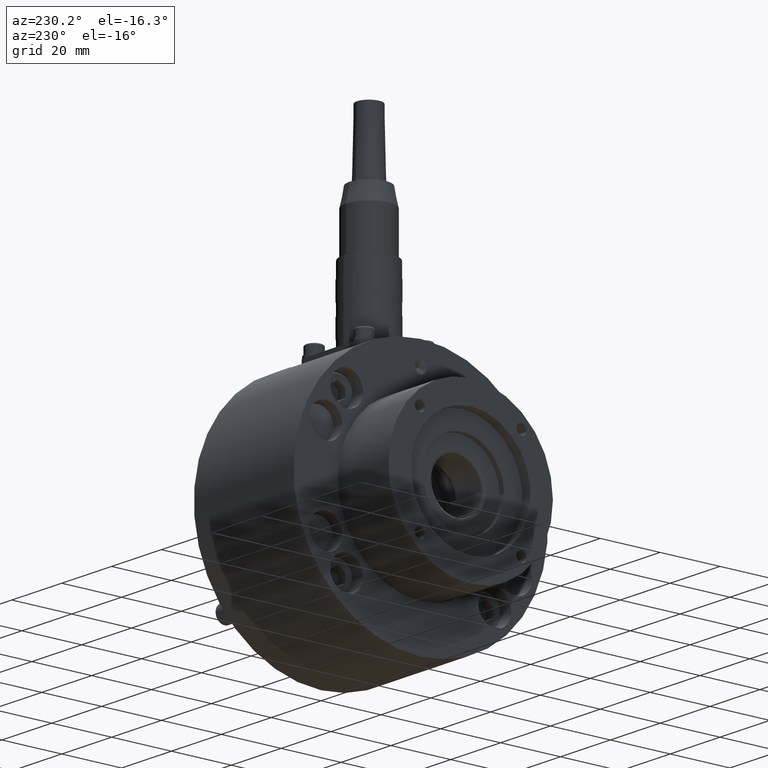
[diagram: clean part render]
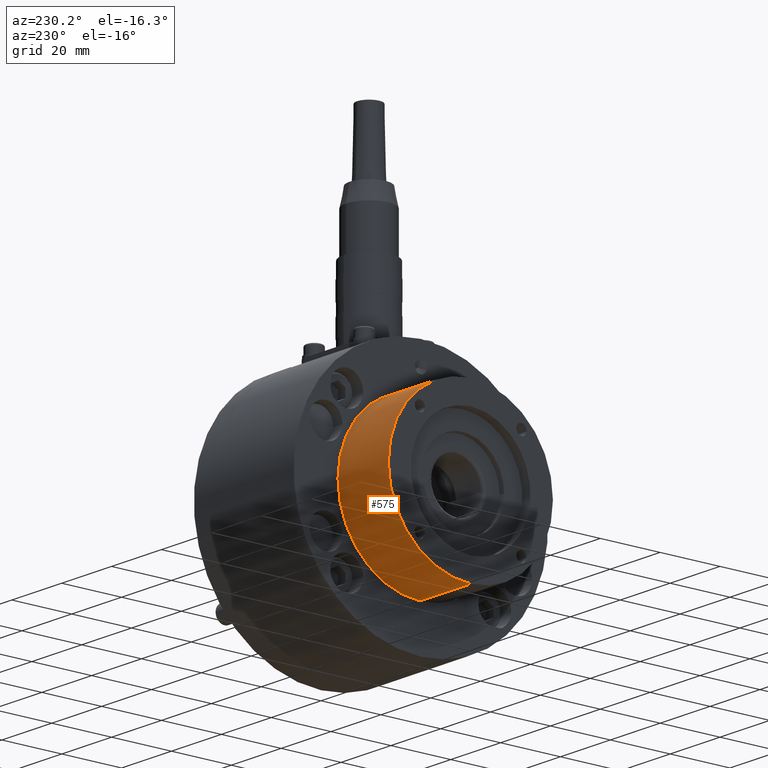
[diagram: same view with one face highlighted and labeled with its STEP entity id]
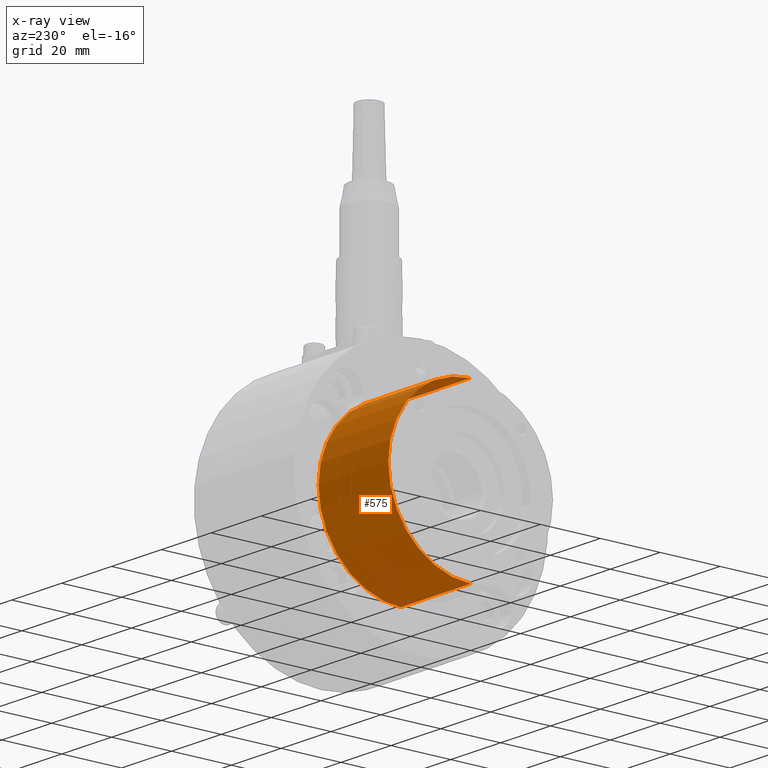
[diagram: x-ray of the same camera — body ghosted, the highlighted face saturated]
A machine part, auxiliary view. The second image highlights one B-rep face of the part: STEP entity #575.
The next image is the same camera in x-ray: the body ghosted, the highlighted face saturated — about 0% of this face is hidden behind the body in this view.
In plain terms, the highlighted cylindrical surface (partial cylindrical patch) has radius 27.5 mm, axis along (1, -0, 0).
Its self-contained STEP definition (entity closure, byte-faithful):
#534=CARTESIAN_POINT('',(-13.000000000000005,2.0,0.0));
#535=DIRECTION('',(1.0,0.0,0.0));
#536=DIRECTION('',(0.0,1.0,0.0));
#537=AXIS2_PLACEMENT_3D('',#534,#535,#536);
#538=CYLINDRICAL_SURFACE('',#537,27.500000000000004);
#539=CARTESIAN_POINT('',(0.999999999999989,29.500000000000007,0.0));
#540=VERTEX_POINT('',#539);
#541=CARTESIAN_POINT('',(-27.0,29.500000000000000,0.0));
#542=VERTEX_POINT('',#541);
#543=CARTESIAN_POINT('',(0.999999999999989,29.500000000000007,0.0));
#544=DIRECTION('',(-1.0,0.0,0.0));
#545=VECTOR('',#544,27.999999999999989);
#546=LINE('',#543,#545);
#547=EDGE_CURVE('',#540,#542,#546,.T.);
#548=ORIENTED_EDGE('',*,*,#547,.F.);
#549=CARTESIAN_POINT('',(0.999999999999989,-25.500000000000004,-3.367667E-015));
#550=VERTEX_POINT('',#549);
#551=CARTESIAN_POINT('',(0.999999999999989,2.0,0.0));
#552=DIRECTION('',(1.0,0.0,0.0));
#553=DIRECTION('',(0.0,1.0,0.0));
#554=AXIS2_PLACEMENT_3D('',#551,#552,#553);
#555=CIRCLE('',#554,27.500000000000007);
#556=EDGE_CURVE('',#550,#540,#555,.T.);
#557=ORIENTED_EDGE('',*,*,#556,.F.);
#558=CARTESIAN_POINT('',(-27.0,-25.500000000000004,-3.367667E-015));
#559=VERTEX_POINT('',#558);
#560=CARTESIAN_POINT('',(0.999999999999989,-25.500000000000004,-3.367667E-015));
#561=DIRECTION('',(-1.0,0.0,0.0));
#562=VECTOR('',#561,27.999999999999989);
#563=LINE('',#560,#562);
#564=EDGE_CURVE('',#550,#559,#563,.T.);
#565=ORIENTED_EDGE('',*,*,#564,.T.);
#566=CARTESIAN_POINT('',(-27.0,2.0,0.0));
#567=DIRECTION('',(1.0,0.0,0.0));
#568=DIRECTION('',(0.0,1.0,0.0));
#569=AXIS2_PLACEMENT_3D('',#566,#567,#568);
#570=CIRCLE('',#569,27.500000000000000);
#571=EDGE_CURVE('',#559,#542,#570,.T.);
#572=ORIENTED_EDGE('',*,*,#571,.T.);
#573=EDGE_LOOP('',(#548,#557,#565,#572));
#574=FACE_OUTER_BOUND('',#573,.T.);
#575=ADVANCED_FACE('',(#574),#538,.T.);